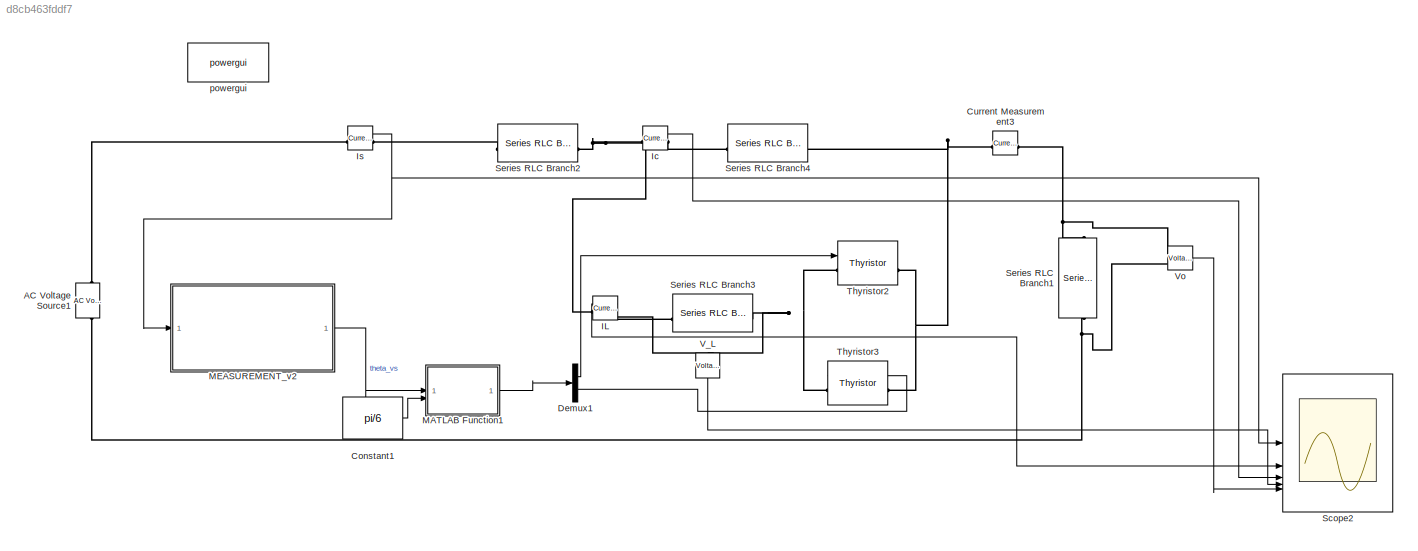
MODEL slx_d8cb463fddf7
KIND model
CONFIG AbsTol = auto
CONFIG EnableMultiTasking = off
CONFIG FixedStep = auto
CONFIG MaxStep = auto
CONFIG MinStep = auto
CONFIG RelTol = 1e-3
CONFIG SampleTimeConstraint = Unconstrained
CONFIG SolverName = VariableStepAuto
CONFIG StartTime = 0.0
CONFIG StopTime = .5
BLOCK [Reference] AC Voltage Source1  REF=spsACVoltageSourceLib/AC Voltage Source
  LibrarySourceBlock = sps_lib/Sources/AC Voltage Source
  SourceBlock = spsACVoltageSourceLib/AC Voltage Source
  SourceType = AC Voltage Source
BLOCK [Constant] Constant1
  Value = pi/6
BLOCK [Reference] Current Measurement3  REF=spsCurrentMeasurementLib/Current Measurement
  LibrarySourceBlock = sps_lib/Sensors and Measurements/Current Measurement
  SourceBlock = spsCurrentMeasurementLib/Current Measurement
  SourceType = Current Measurement
  UserDataPersistent = on
BLOCK [Demux] Demux1
  Outputs = 2
BLOCK [Reference] IL  REF=spsCurrentMeasurementLib/Current Measurement
  LibrarySourceBlock = sps_lib/Sensors and Measurements/Current Measurement
  NameLocation = top
  SourceBlock = spsCurrentMeasurementLib/Current Measurement
  SourceType = Current Measurement
  UserDataPersistent = on
BLOCK [Reference] Ic  REF=spsCurrentMeasurementLib/Current Measurement
  LibrarySourceBlock = sps_lib/Sensors and Measurements/Current Measurement
  SourceBlock = spsCurrentMeasurementLib/Current Measurement
  SourceType = Current Measurement
  UserDataPersistent = on
BLOCK [Reference] Is  REF=spsCurrentMeasurementLib/Current Measurement
  LibrarySourceBlock = sps_lib/Sensors and Measurements/Current Measurement
  SourceBlock = spsCurrentMeasurementLib/Current Measurement
  SourceType = Current Measurement
  UserDataPersistent = on
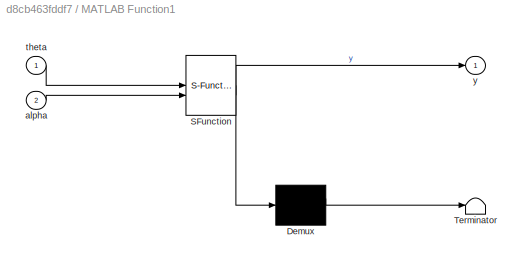
BLOCK [SubSystem] MATLAB Function1
  ErrorFcn = Stateflow.Translate.translate
  LibrarySourceBlock = simulink/User-Defined\nFunctions/MATLAB Function
  PermitHierarchicalResolution = ExplicitOnly
  SFBlockType = MATLAB Function
  TreatAsAtomicUnit = on
BLOCK [Demux] MATLAB Function1/ Demux 
  Outputs = 1
BLOCK [S-Function] MATLAB Function1/ SFunction 
  EnableBusSupport = on
  FunctionName = sf_sfun
  PortCounts = [2 2]
  SFcnIsStateOwnerBlock = off
  SFunctionDeploymentMode = off
  Tag = Stateflow S-Function 1
BLOCK [Terminator] MATLAB Function1/ Terminator 
BLOCK [Inport] MATLAB Function1/alpha
  Port = 2
BLOCK [Inport] MATLAB Function1/theta
BLOCK [Outport] MATLAB Function1/y
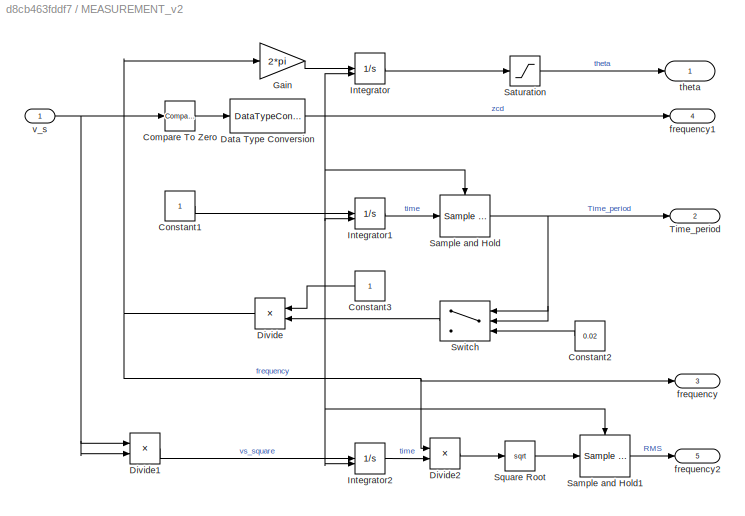
BLOCK [SubSystem] MEASUREMENT_v2
BLOCK [Reference] MEASUREMENT_v2/Compare To Zero  REF=simulink/Logic and Bit
Operations/Compare
To Zero
  SourceBlock = simulink/Logic and Bit\nOperations/Compare\nTo Zero
  SourceType = Compare To Zero
BLOCK [Constant] MEASUREMENT_v2/Constant1
BLOCK [Constant] MEASUREMENT_v2/Constant2
  NameLocation = top
  Value = 0.02
BLOCK [Constant] MEASUREMENT_v2/Constant3
  NameLocation = top
BLOCK [DataTypeConversion] MEASUREMENT_v2/Data Type Conversion
  RndMeth = Floor
  SaturateOnIntegerOverflow = off
BLOCK [Product] MEASUREMENT_v2/Divide
  Inputs = */
  NameLocation = top
BLOCK [Product] MEASUREMENT_v2/Divide1
  Inputs = **
BLOCK [Product] MEASUREMENT_v2/Divide2
  Inputs = **
BLOCK [Gain] MEASUREMENT_v2/Gain
  Gain = 2*pi
BLOCK [Integrator] MEASUREMENT_v2/Integrator
  ExternalReset = rising
BLOCK [Integrator] MEASUREMENT_v2/Integrator1
  ExternalReset = rising
BLOCK [Integrator] MEASUREMENT_v2/Integrator2
  ExternalReset = rising
BLOCK [Reference] MEASUREMENT_v2/Sample and Hold  REF=dspsigops/Sample
and Hold
  LibrarySourceBlock = dsphdlsupportsigops/Sample\nand Hold
  SourceBlock = dspsigops/Sample\nand Hold
  SourceType = Sample and Hold
BLOCK [Reference] MEASUREMENT_v2/Sample and Hold1  REF=dspsigops/Sample
and Hold
  LibrarySourceBlock = dsphdlsupportsigops/Sample\nand Hold
  SourceBlock = dspsigops/Sample\nand Hold
  SourceType = Sample and Hold
BLOCK [Saturate] MEASUREMENT_v2/Saturation
  LowerLimit = -2*pi
  UpperLimit = 2*pi
BLOCK [Sqrt] MEASUREMENT_v2/Square Root
BLOCK [Switch] MEASUREMENT_v2/Switch
  Criteria = u2 > Threshold
  InputSameDT = off
  NameLocation = top
  SaturateOnIntegerOverflow = off
BLOCK [Outport] MEASUREMENT_v2/Time_period
  IconDisplay = Port number and signal name
  Port = 2
BLOCK [Outport] MEASUREMENT_v2/frequency
  IconDisplay = Port number and signal name
  Port = 3
BLOCK [Outport] MEASUREMENT_v2/frequency1
  IconDisplay = Port number and signal name
  Port = 4
BLOCK [Outport] MEASUREMENT_v2/frequency2
  IconDisplay = Port number and signal name
  Port = 5
BLOCK [Outport] MEASUREMENT_v2/theta
  IconDisplay = Port number and signal name
BLOCK [Inport] MEASUREMENT_v2/v_s
  IconDisplay = Port number and signal name
BLOCK [Scope] Scope2
  Floating = off
  NumInputPorts = 5
  ScopeSpecificationString = Simulink.scopes.TimeScopeBlockCfg('CurrentConfiguration', extmgr.ConfigurationSet(extmgr.Configuration('Core','General UI',true),extmgr.Configuration('Core','Source UI',true),extmgr.Configuration('Sources','WiredSimulink',true),extmgr.Configuration('Visuals','Time Domain',true,'SerializedDisplays',{struct('MinYLimReal','-1762.25419','MaxYLimReal','1682.34334','YLabelReal','','MinYLimMag','  0.0000...<+4148ch>
BLOCK [Reference] Series RLC Branch1  REF=spsSeriesRLCBranchLib/Series RLC Branch
  LibrarySourceBlock = sps_lib/Passives/Series RLC Branch
  NameLocation = left
  SourceBlock = spsSeriesRLCBranchLib/Series RLC Branch
  SourceType = Series RLC Branch
BLOCK [Reference] Series RLC Branch2  REF=spsSeriesRLCBranchLib/Series RLC Branch
  LibrarySourceBlock = sps_lib/Passives/Series RLC Branch
  NameLocation = top
  SourceBlock = spsSeriesRLCBranchLib/Series RLC Branch
  SourceType = Series RLC Branch
BLOCK [Reference] Series RLC Branch3  REF=spsSeriesRLCBranchLib/Series RLC Branch
  LibrarySourceBlock = sps_lib/Passives/Series RLC Branch
  SourceBlock = spsSeriesRLCBranchLib/Series RLC Branch
  SourceType = Series RLC Branch
BLOCK [Reference] Series RLC Branch4  REF=spsSeriesRLCBranchLib/Series RLC Branch
  LibrarySourceBlock = sps_lib/Passives/Series RLC Branch
  SourceBlock = spsSeriesRLCBranchLib/Series RLC Branch
  SourceType = Series RLC Branch
BLOCK [Reference] Thyristor2  REF=spsThyristorLib/Thyristor
  LibrarySourceBlock = sps_lib/Power Electronics/Thyristor
  SourceBlock = spsThyristorLib/Thyristor
  SourceType = Thyristor
BLOCK [Reference] Thyristor3  REF=spsThyristorLib/Thyristor
  LibrarySourceBlock = sps_lib/Power Electronics/Thyristor
  NameLocation = top
  SourceBlock = spsThyristorLib/Thyristor
  SourceType = Thyristor
BLOCK [Reference] V_L  REF=spsVoltageMeasurementLib/Voltage Measurement
  LibrarySourceBlock = sps_lib/Sensors and Measurements/Voltage Measurement
  NameLocation = left
  SourceBlock = spsVoltageMeasurementLib/Voltage Measurement
  SourceType = Voltage Measurement
  UserDataPersistent = on
BLOCK [Reference] Vo  REF=spsVoltageMeasurementLib/Voltage Measurement
  LibrarySourceBlock = sps_lib/Sensors and Measurements/Voltage Measurement
  SourceBlock = spsVoltageMeasurementLib/Voltage Measurement
  SourceType = Voltage Measurement
  UserDataPersistent = on
BLOCK [Reference] powergui  REF=sps_lib/powergui
  Priority = 1
  SourceBlock = sps_lib/powergui
  SourceType = PSB option menu block
LINE Constant1:1 -> MATLAB Function1:2
LINE Demux1:1 -> Thyristor2:1
LINE Demux1:2 -> Thyristor3:1
LINE IL:1 -> Scope2:2
LINE Ic:1 -> Scope2:3
NET Is:1 -> MEASUREMENT_v2:1, Scope2:1
LINE MATLAB Function1:1 -> Demux1:1
LINE MEASUREMENT_v2/Compare To Zero:1 -> MEASUREMENT_v2/Data Type Conversion:1
LINE MEASUREMENT_v2/Constant1:1 -> MEASUREMENT_v2/Integrator1:1
LINE MEASUREMENT_v2/Constant2:1 -> MEASUREMENT_v2/Switch:3
LINE MEASUREMENT_v2/Constant3:1 -> MEASUREMENT_v2/Divide:1
NET MEASUREMENT_v2/Data Type Conversion:1 -> MEASUREMENT_v2/Integrator1:2, MEASUREMENT_v2/Integrator2:2, MEASUREMENT_v2/Integrator:2, MEASUREMENT_v2/Sample and Hold1:trigger, MEASUREMENT_v2/Sample and Hold:trigger, MEASUREMENT_v2/frequency1:1
LINE MEASUREMENT_v2/Divide1:1 -> MEASUREMENT_v2/Integrator2:1
LINE MEASUREMENT_v2/Divide2:1 -> MEASUREMENT_v2/Square Root:1
NET MEASUREMENT_v2/Divide:1 -> MEASUREMENT_v2/Divide2:1, MEASUREMENT_v2/Gain:1, MEASUREMENT_v2/frequency:1
LINE MEASUREMENT_v2/Gain:1 -> MEASUREMENT_v2/Integrator:1
LINE MEASUREMENT_v2/Integrator1:1 -> MEASUREMENT_v2/Sample and Hold:1
LINE MEASUREMENT_v2/Integrator2:1 -> MEASUREMENT_v2/Divide2:2
LINE MEASUREMENT_v2/Integrator:1 -> MEASUREMENT_v2/Saturation:1
LINE MEASUREMENT_v2/Sample and Hold1:1 -> MEASUREMENT_v2/frequency2:1
NET MEASUREMENT_v2/Sample and Hold:1 -> MEASUREMENT_v2/Switch:1, MEASUREMENT_v2/Switch:2, MEASUREMENT_v2/Time_period:1
LINE MEASUREMENT_v2/Saturation:1 -> MEASUREMENT_v2/theta:1
LINE MEASUREMENT_v2/Square Root:1 -> MEASUREMENT_v2/Sample and Hold1:1
LINE MEASUREMENT_v2/Switch:1 -> MEASUREMENT_v2/Divide:2
NET MEASUREMENT_v2/v_s:1 -> MEASUREMENT_v2/Compare To Zero:1, MEASUREMENT_v2/Divide1:1, MEASUREMENT_v2/Divide1:2
LINE MEASUREMENT_v2:1 -> MATLAB Function1:1
LINE V_L:1 -> Scope2:4
LINE Vo:1 -> Scope2:5
PNET net1: AC Voltage Source1:LConn1 -- Series RLC Branch1:RConn1 -- Vo:LConn2
PLINE AC Voltage Source1:RConn1 -- Is:LConn1
PNET net2: Current Measurement3:LConn1 -- Series RLC Branch4:RConn1 -- Thyristor2:RConn1 -- Thyristor3:LConn1
PNET net3: Current Measurement3:RConn1 -- Series RLC Branch1:LConn1 -- Vo:LConn1
PNET net4: IL:LConn1 -- Series RLC Branch3:LConn1 -- V_L:LConn2
PNET net5: IL:RConn1 -- Ic:LConn1 -- Series RLC Branch2:LConn1
PLINE Ic:RConn1 -- Series RLC Branch4:LConn1
PLINE Is:RConn1 -- Series RLC Branch2:RConn1
PNET net6: Series RLC Branch3:RConn1 -- Thyristor2:LConn1 -- Thyristor3:RConn1 -- V_L:LConn1
note: NET lines group one-source signal fan-out (src -> all destinations, sorted); 1:1 wires keep LINE; PNET lines group multi-terminal physical nets as a canonical sorted terminal list (undirected conserving connections); 2-terminal nets keep the pairwise PLINE form
CHART MATLAB Function1 states=1 transitions=1
  STATE_LABEL 'eML_blk_kernel()'
  STATE_LABEL 'SCRIPT:\nfunction y = fcn(theta,alpha)\ngi=[0 0];\nif(alpha == 0)\n    gi=[0 0];\nelse\nif(theta>= alpha && theta< pi/2)\n    gi=[0 1];\nend\nif(theta>=pi+alpha && theta <3*pi/2)\n    gi=[1 0];\nend\nend\ny=gi;'
CHART  states=0 transitions=0
